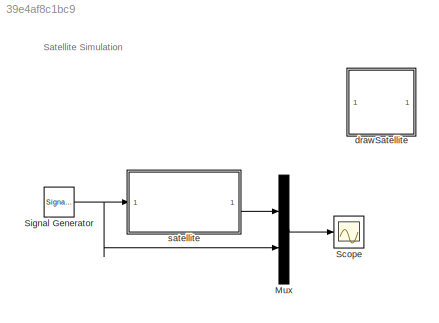
MODEL slx_39e4af8c1bc9
KIND model
CONFIG AbsTol = auto
CONFIG EnableMultiTasking = on
CONFIG FixedStep = auto
CONFIG InitFcn = addpath ./..\nsatellite_param
CONFIG MaxStep = auto
CONFIG MinStep = auto
CONFIG RelTol = 1e-3
CONFIG SampleTimeConstraint = Unconstrained
CONFIG Solver = ode45
CONFIG SolverName = ode45
CONFIG StartTime = 0.0
CONFIG StopTime = 10000
BLOCK [Mux] Mux
  DisplayOption = bar
  Inputs = [2;1]
  Ports = [2, 1]
BLOCK [Scope] Scope
  NumInputPorts = 1
  Ports = [1]
  ScopeSpecificationString = Simulink.scopes.TimeScopeBlockCfg('CurrentConfiguration', extmgr.ConfigurationSet(extmgr.Configuration('Core','General UI',true),extmgr.Configuration('Core','Source UI',true),extmgr.Configuration('Sources','WiredSimulink',true),extmgr.Configuration('Visuals','Time Domain',true,'SerializedDisplays',{struct('MinYLimReal','-6.64582','MaxYLimReal','49.81234','YLabelReal','','MinYLimMag','0.00000','Max...<+1467ch>
BLOCK [SignalGenerator] Signal Generator
  Frequency = .05
  Ports = [0, 1]
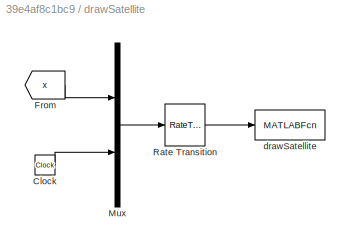
BLOCK [SubSystem] drawSatellite
  Ports = []
  RequestExecContextInheritance = off
  Variant = off
BLOCK [Clock] drawSatellite/Clock
BLOCK [From] drawSatellite/From
  GotoTag = x
  TagVisibility = global
BLOCK [Mux] drawSatellite/Mux
  DisplayOption = bar
  Inputs = 2
  Ports = [2, 1]
BLOCK [RateTransition] drawSatellite/Rate Transition
  OutPortSampleTime = P.t_plot
BLOCK [MATLABFcn] drawSatellite/drawSatellite
  MATLABFcn = satellite_animation(u, P)
  OutputDimensions = 0
  Ports = [1]
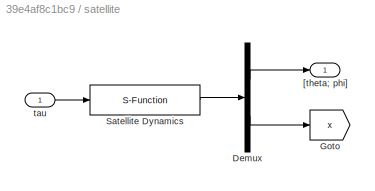
BLOCK [SubSystem] satellite
  Ports = [1, 1]
  RequestExecContextInheritance = off
  Variant = off
BLOCK [Demux] satellite/Demux
  DisplayOption = bar
  Outputs = [2;4]
  Ports = [1, 2]
BLOCK [Goto] satellite/Goto
  GotoTag = x
  TagVisibility = global
BLOCK [S-Function] satellite/Satellite Dynamics
  EnableBusSupport = off
  FunctionName = satellite_dynamics
  Parameters = P
  Ports = [1, 1]
  SFcnIsStateOwnerBlock = off
  SFunctionDeploymentMode = off
BLOCK [Outport] satellite/[theta; phi]
  IconDisplay = Port number
BLOCK [Inport] satellite/tau
  IconDisplay = Port number
ANNOTATION (root): Satellite Simulation
LINE Mux:1 -> Scope:1
NET Signal Generator:1 -> Mux:2, satellite:1
LINE drawSatellite/Clock:1 -> drawSatellite/Mux:2
LINE drawSatellite/From:1 -> drawSatellite/Mux:1
LINE drawSatellite/Mux:1 -> drawSatellite/Rate Transition:1
LINE drawSatellite/Rate Transition:1 -> drawSatellite/drawSatellite:1
LINE satellite/Demux:1 -> satellite/[theta; phi]:1
LINE satellite/Demux:2 -> satellite/Goto:1
LINE satellite/Satellite Dynamics:1 -> satellite/Demux:1
LINE satellite/tau:1 -> satellite/Satellite Dynamics:1
LINE satellite:1 -> Mux:1
note: NET lines group one-source signal fan-out (src -> all destinations, sorted); 1:1 wires keep LINE
